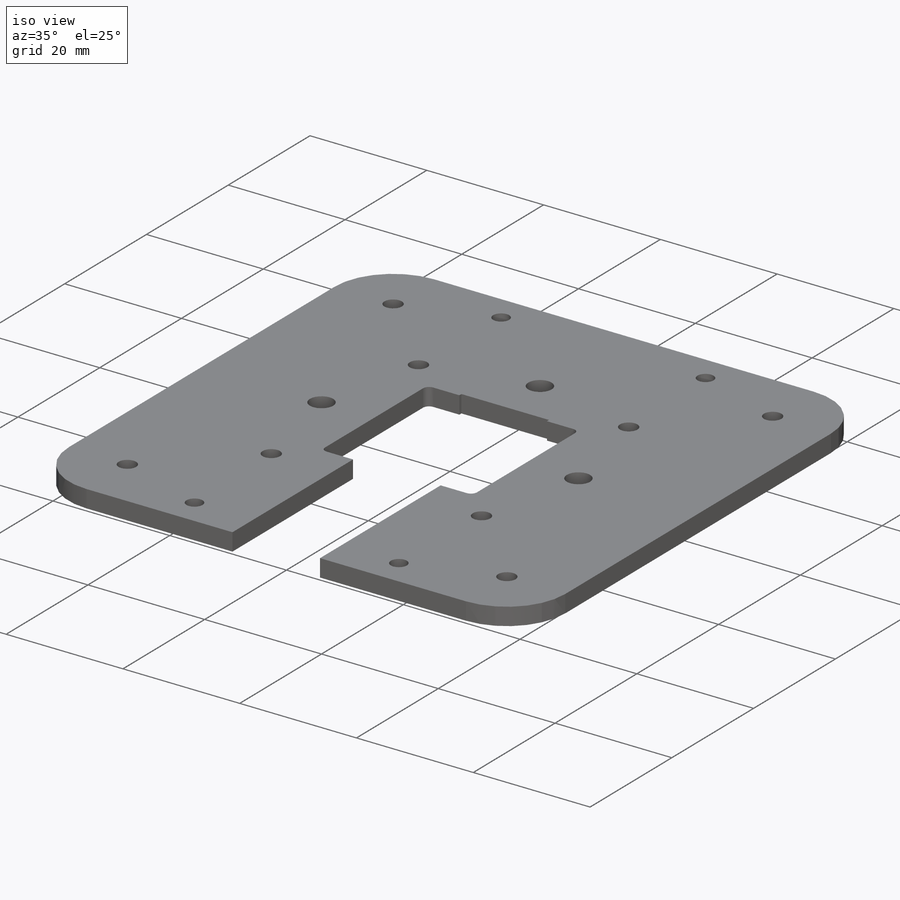
[diagram: iso view]
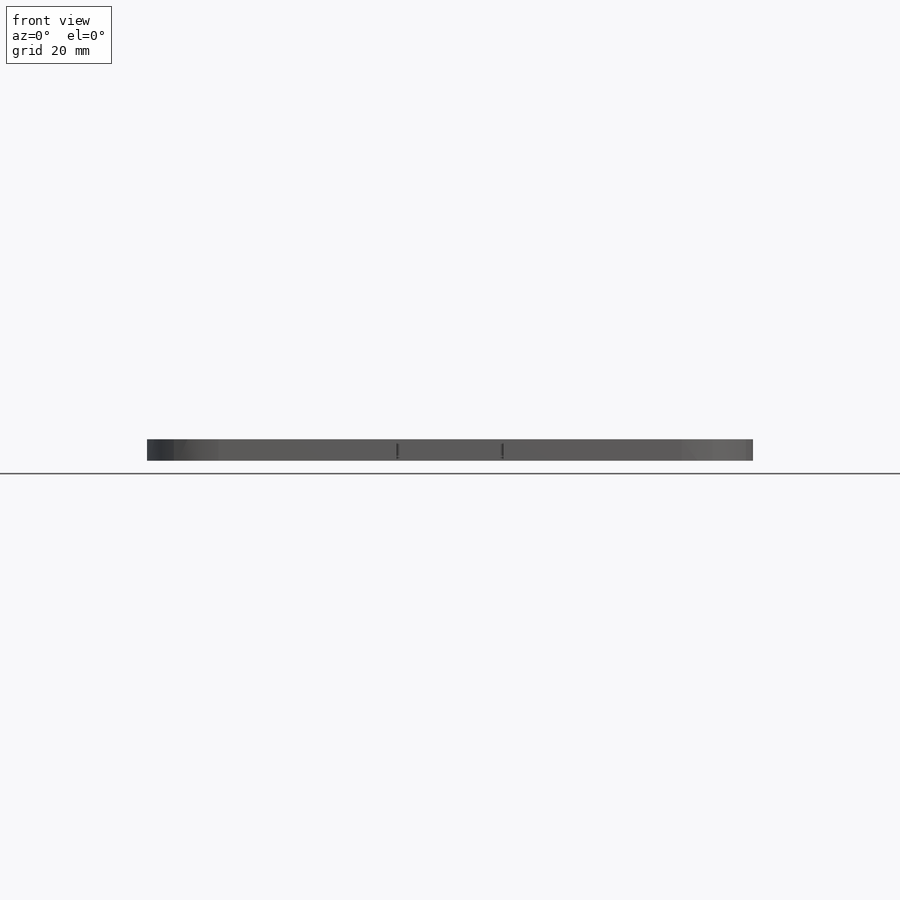
[diagram: front view]
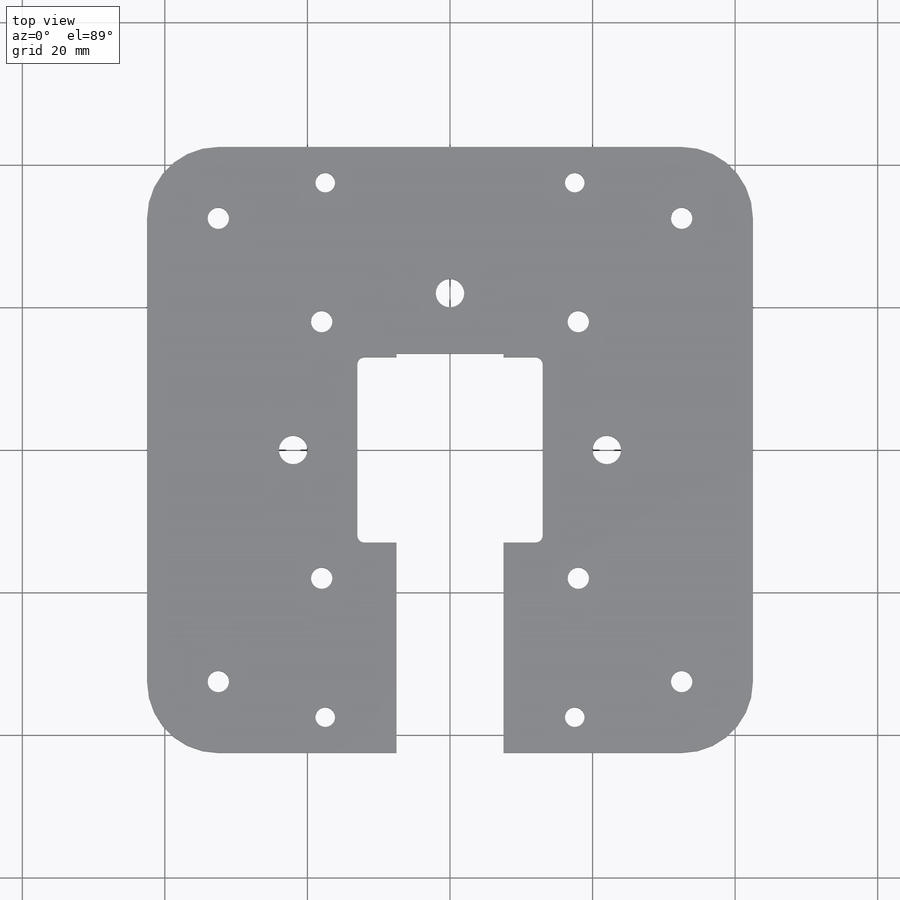
[diagram: top view]
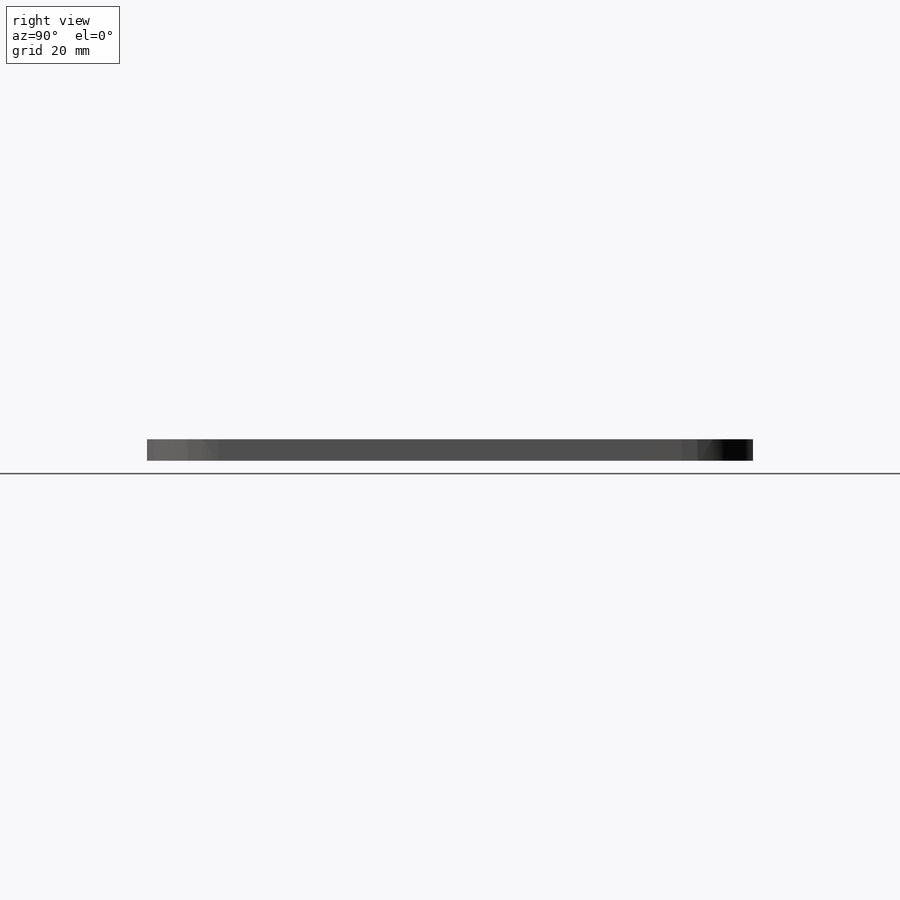
[diagram: right view]
SOLIDWORKS PART (.sldprt)
format: sldprt  version: not decoded by parser v0  size: 275,456 bytes
history: native  units: mm
features: sketch x3, fillet x2, cut_extrude x2, material x1, extrude x1 (+13 scaffold rows collapsed)
feature tree (22):
  scaffold x13  (default folders/planes/origin — collapsed)
  material  "Acrylic (Medium-high impact)"
  sketch  "Sketch1"  dims[c1.D1=85.0mm c1.D2=50.0mm c1.D3=~16.206453mm c1.D4=40.0mm c2.D3=20.0mm]
  extrude  "Boss-Extrude1"  Depth=3mm
  fillet  "Fillet1"  Radius=10mm
  sketch  "Sketch2"  dims[c1.D1=3.0mm c1.D2=4.5mm c2.D1=3.0mm c2.D4=3.0mm c2.D6=4.0mm c2.D3=25.5mm c2.D2=18.0mm c3.D3=18.0mm c3.D5=22.0mm c3.D7=4.0]
  cut_extrude  "Cut-Extrude1"  [1 undecoded]
  sketch  "Sketch3"  dims[D1=56.0mm D2=15.0mm D3=26.0mm D4=25.0mm]
  cut_extrude  "Cut-Extrude2"  [1 undecoded]
  fillet  "Fillet2"  Radius=1mm
decode coverage: 6 of 8 modeling features carry decoded parameters
note: ~ marks probable driven/reference dimensions
note: 2 parameter values undecoded
note: suppression state not decoded; provenance and decode notes live in map.json
